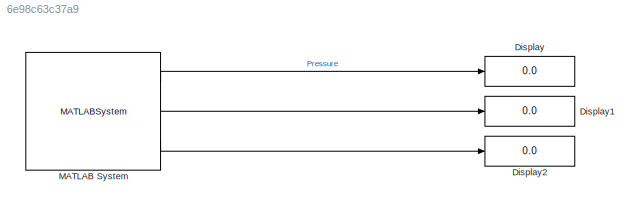
MODEL slx_6e98c63c37a9
KIND model
CONFIG AbsTol = auto
CONFIG EnableMultiTasking = on
CONFIG FixedStep = auto
CONFIG MaxStep = auto
CONFIG MinStep = auto
CONFIG RelTol = 1e-3
CONFIG SampleTimeConstraint = Unconstrained
CONFIG Solver = FixedStepAuto
CONFIG SolverName = FixedStepAuto
CONFIG StartTime = 0.0
CONFIG StopTime = inf
BLOCK [Display] Display
  Decimation = 1
  Ports = [1]
BLOCK [Display] Display1
  Decimation = 1
  Ports = [1]
BLOCK [Display] Display2
  Decimation = 1
  Ports = [1]
BLOCK [MATLABSystem] MATLAB System
  MaskDisplay = disp('BMP085');\nport_label('output',1,'press');\nport_label('output',2,'temp');\nport_label('output',3,'alt');
  MaskType = BMP085
  Ports = [0, 3]
  Reference_Pressure = 101325
  SimulateUsing = Code generation
  System = BMP085
LINE MATLAB System:1 -> Display:1
LINE MATLAB System:2 -> Display1:1
LINE MATLAB System:3 -> Display2:1
